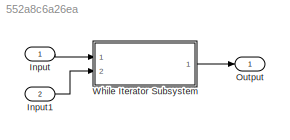
MODEL slx_552a8c6a26ea
KIND model
CONFIG AbsTol = auto
CONFIG EnableMultiTasking = off
CONFIG FixedStep = auto
CONFIG MaxStep = auto
CONFIG MinStep = auto
CONFIG RelTol = 1e-3
CONFIG SampleTimeConstraint = Unconstrained
CONFIG SolverName = VariableStepAuto
CONFIG StartTime = 0.0
CONFIG StopTime = 10.0
BLOCK [Inport] Input
BLOCK [Inport] Input1
  Port = 2
BLOCK [Outport] Output
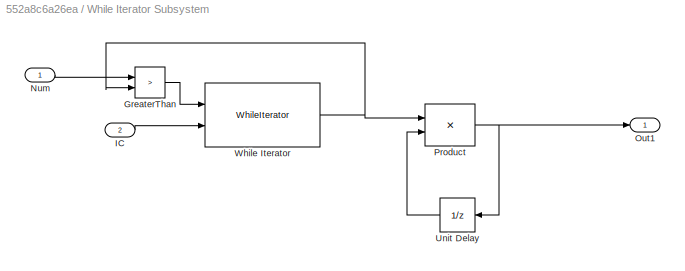
BLOCK [SubSystem] While Iterator Subsystem
  Ports = [2, 1]
  RequestExecContextInheritance = off
  TreatAsAtomicUnit = on
BLOCK [RelationalOperator] While Iterator Subsystem/GreaterThan
  InputSameDT = off
  Operator = >
  OutDataTypeStr = boolean
  Ports = [2, 1]
  RndMeth = Simplest
BLOCK [Inport] While Iterator Subsystem/IC
  OutDataTypeStr = uint8
  Port = 2
BLOCK [Inport] While Iterator Subsystem/Num
  OutDataTypeStr = uint8
BLOCK [Outport] While Iterator Subsystem/Out1
  OutDataTypeStr = uint8
BLOCK [Product] While Iterator Subsystem/Product
  OutDataTypeStr = uint8
  Ports = [2, 1]
BLOCK [UnitDelay] While Iterator Subsystem/Unit Delay
  HasFrameUpgradeWarning = on
  InitialCondition = 1
  SampleTime = -1
BLOCK [WhileIterator] While Iterator Subsystem/While Iterator
  MaxIters = -1
  OutputDataType = uint8
  Ports = [2, 1]
  ResetStates = reset
  ShowIterationPort = on
LINE Input1:1 -> While Iterator Subsystem:2
LINE Input:1 -> While Iterator Subsystem:1
LINE While Iterator Subsystem/GreaterThan:1 -> While Iterator Subsystem/While Iterator:1
LINE While Iterator Subsystem/IC:1 -> While Iterator Subsystem/While Iterator:2
LINE While Iterator Subsystem/Num:1 -> While Iterator Subsystem/GreaterThan:1
NET While Iterator Subsystem/Product:1 -> While Iterator Subsystem/Out1:1, While Iterator Subsystem/Unit Delay:1
LINE While Iterator Subsystem/Unit Delay:1 -> While Iterator Subsystem/Product:2
NET While Iterator Subsystem/While Iterator:1 -> While Iterator Subsystem/GreaterThan:2, While Iterator Subsystem/Product:1
LINE While Iterator Subsystem:1 -> Output:1
note: NET lines group one-source signal fan-out (src -> all destinations, sorted); 1:1 wires keep LINE
